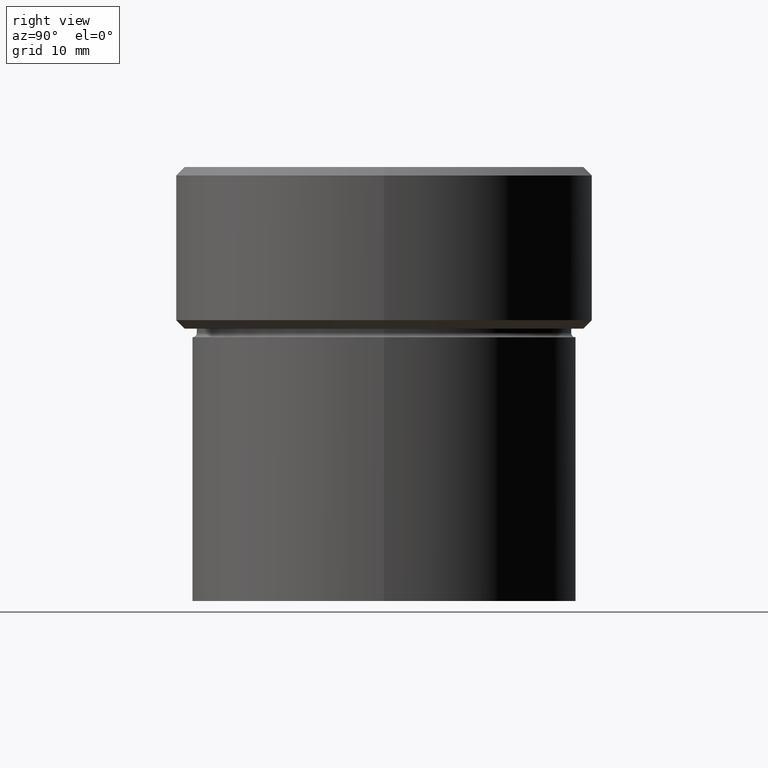
[diagram: clean part render]
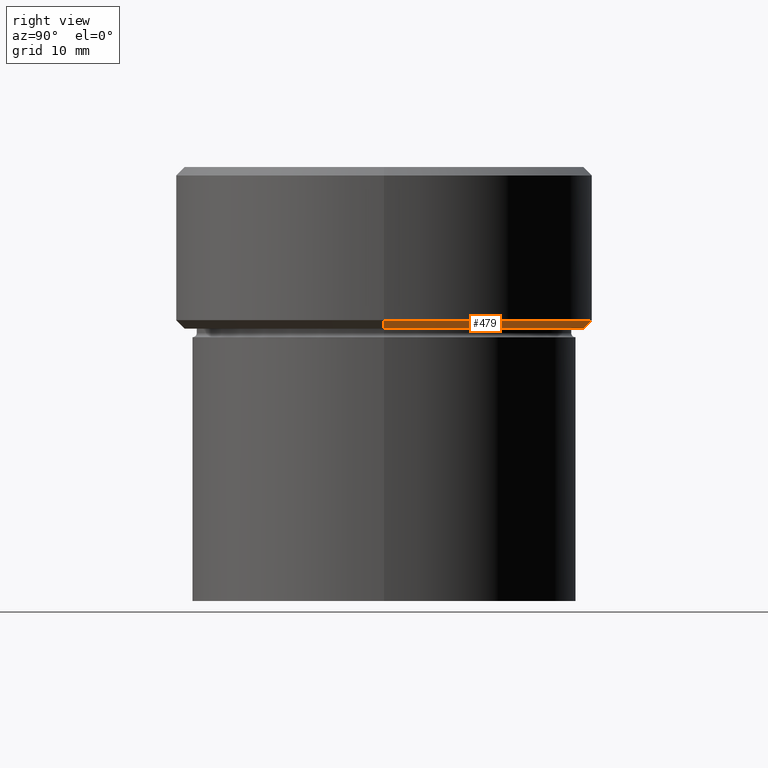
[diagram: same view with one face highlighted and labeled with its STEP entity id]
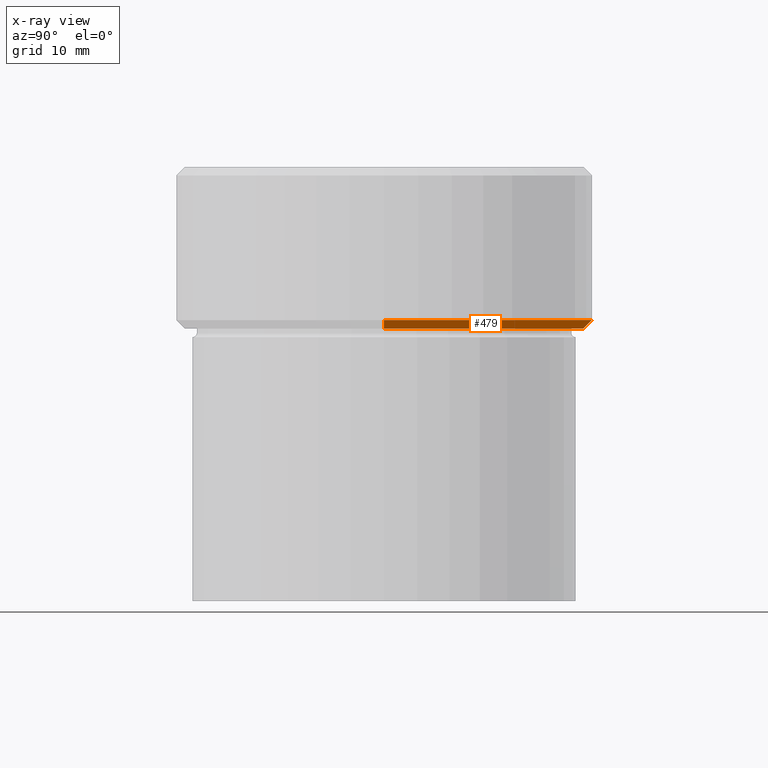
[diagram: x-ray of the same camera — body ghosted, the highlighted face saturated]
A machine part, right view. The second image highlights one B-rep face of the part: STEP entity #479.
The next image is the same camera in x-ray: the body ghosted, the highlighted face saturated — about 0% of this face is hidden behind the body in this view.
In plain terms, the highlighted conical surface has half-angle 45 deg.
Its self-contained STEP definition (entity closure, byte-faithful):
#27 = VERTEX_POINT ( 'NONE', #438 ) ;
#76 = CARTESIAN_POINT ( 'NONE',  ( 24.50000000000000000, 0.000000000000000000, -17.99999999999998224 ) ) ;
#81 = DIRECTION ( 'NONE',  ( -1.000000000000000000, 0.000000000000000000, 0.000000000000000000 ) ) ;
#89 = ORIENTED_EDGE ( 'NONE', *, *, #135, .F. ) ;
#123 = DIRECTION ( 'NONE',  ( 0.000000000000000000, 0.000000000000000000, -1.000000000000000000 ) ) ;
#133 = CARTESIAN_POINT ( 'NONE',  ( 0.000000000000000000, 0.000000000000000000, -17.99999999999998224 ) ) ;
#135 = EDGE_CURVE ( 'NONE', #398, #27, #143, .T. ) ;
#143 = CIRCLE ( 'NONE', #380, 24.50000000000000000 ) ;
#148 = DIRECTION ( 'NONE',  ( -0.7071067811865451302, 8.659560562354904508E-17, 0.7071067811865500152 ) ) ;
#153 = AXIS2_PLACEMENT_3D ( 'NONE', #497, #123, #412 ) ;
#168 = LINE ( 'NONE', #76, #403 ) ;
#185 = LINE ( 'NONE', #271, #194 ) ;
#194 = VECTOR ( 'NONE', #148, 1000.000000000000114 ) ;
#197 = EDGE_CURVE ( 'NONE', #295, #351, #437, .T. ) ;
#202 = ORIENTED_EDGE ( 'NONE', *, *, #279, .T. ) ;
#215 = DIRECTION ( 'NONE',  ( 0.7071067811865451302, 0.000000000000000000, 0.7071067811865500152 ) ) ;
#230 = ORIENTED_EDGE ( 'NONE', *, *, #197, .F. ) ;
#244 = CONICAL_SURFACE ( 'NONE', #250, 24.50000000000000000, 0.7853981633974447263 ) ;
#249 = DIRECTION ( 'NONE',  ( -0.000000000000000000, -0.000000000000000000, 1.000000000000000000 ) ) ;
#250 = AXIS2_PLACEMENT_3D ( 'NONE', #133, #249, #331 ) ;
#271 = CARTESIAN_POINT ( 'NONE',  ( -24.50000000000000000, 3.000384657911015469E-15, -17.99999999999998224 ) ) ;
#274 = CARTESIAN_POINT ( 'NONE',  ( 23.49999999999999289, 0.000000000000000000, -18.99999999999999645 ) ) ;
#279 = EDGE_CURVE ( 'NONE', #295, #27, #185, .T. ) ;
#295 = VERTEX_POINT ( 'NONE', #343 ) ;
#331 = DIRECTION ( 'NONE',  ( 1.000000000000000000, 0.000000000000000000, 0.000000000000000000 ) ) ;
#343 = CARTESIAN_POINT ( 'NONE',  ( -23.49999999999999289, 2.939152317953647500E-15, -18.99999999999999645 ) ) ;
#351 = VERTEX_POINT ( 'NONE', #274 ) ;
#359 = ORIENTED_EDGE ( 'NONE', *, *, #472, .F. ) ;
#366 = DIRECTION ( 'NONE',  ( -0.000000000000000000, -0.000000000000000000, 1.000000000000000000 ) ) ;
#373 = FACE_OUTER_BOUND ( 'NONE', #478, .T. ) ;
#380 = AXIS2_PLACEMENT_3D ( 'NONE', #447, #366, #81 ) ;
#398 = VERTEX_POINT ( 'NONE', #432 ) ;
#403 = VECTOR ( 'NONE', #215, 1000.000000000000114 ) ;
#412 = DIRECTION ( 'NONE',  ( -1.000000000000000000, 0.000000000000000000, 0.000000000000000000 ) ) ;
#432 = CARTESIAN_POINT ( 'NONE',  ( 24.50000000000000000, 0.000000000000000000, -17.99999999999998224 ) ) ;
#437 = CIRCLE ( 'NONE', #153, 23.49999999999999289 ) ;
#438 = CARTESIAN_POINT ( 'NONE',  ( -24.50000000000000000, 3.000384657911015469E-15, -17.99999999999998224 ) ) ;
#447 = CARTESIAN_POINT ( 'NONE',  ( 0.000000000000000000, 0.000000000000000000, -17.99999999999998224 ) ) ;
#472 = EDGE_CURVE ( 'NONE', #351, #398, #168, .T. ) ;
#478 = EDGE_LOOP ( 'NONE', ( #230, #202, #89, #359 ) ) ;
#479 = ADVANCED_FACE ( 'NONE', ( #373 ), #244, .T. ) ;
#497 = CARTESIAN_POINT ( 'NONE',  ( 0.000000000000000000, 0.000000000000000000, -18.99999999999999645 ) ) ;